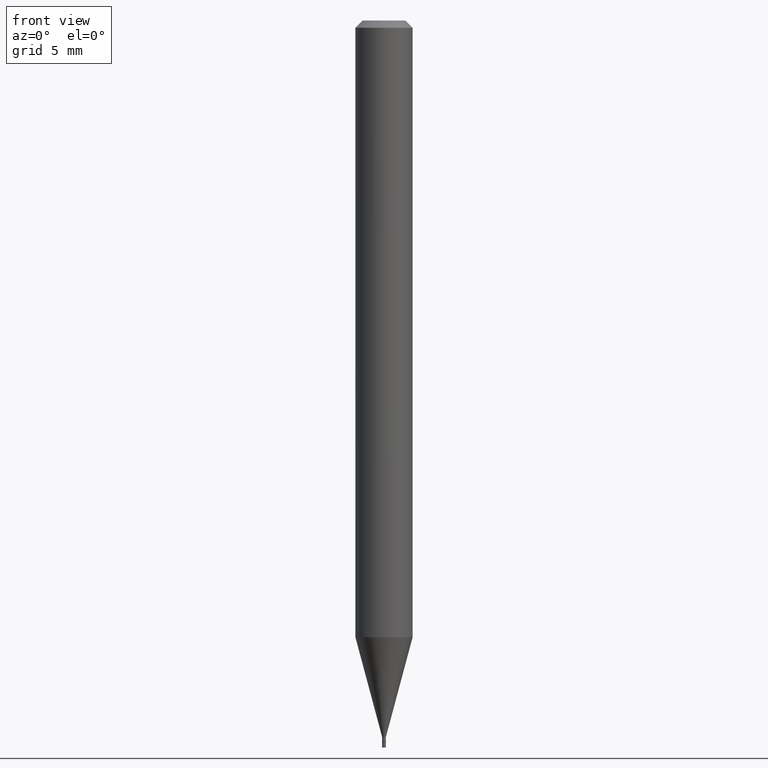
[diagram: clean part render]
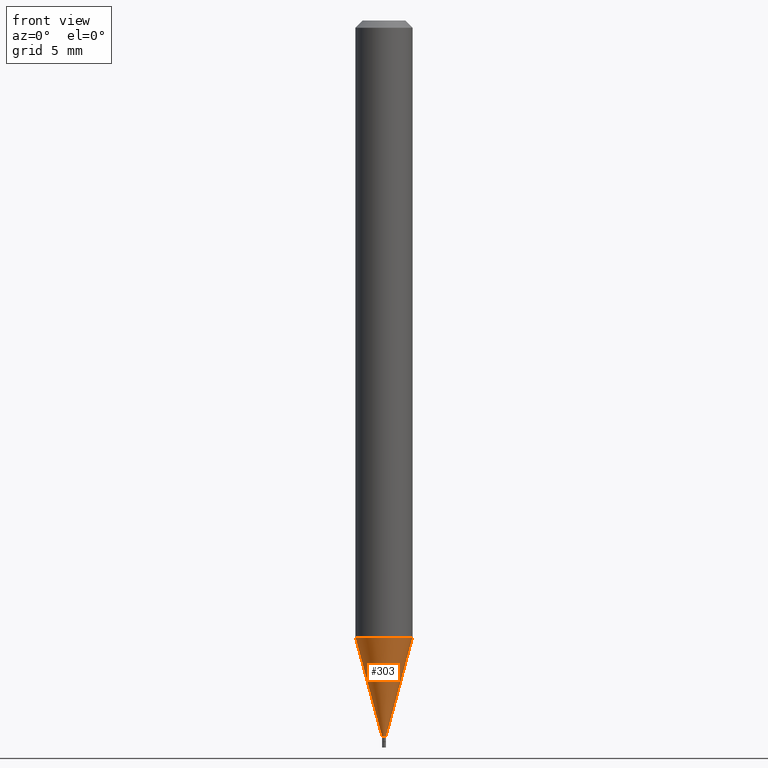
[diagram: same view with one face highlighted and labeled with its STEP entity id]
A machine part, front view. The second image highlights one B-rep face of the part: STEP entity #303.
In plain terms, the highlighted conical surface has half-angle 15 deg.
Its self-contained STEP definition (entity closure, byte-faithful):
#12 = ORIENTED_EDGE ( 'NONE', *, *, #421, .T. ) ;
#47 = CARTESIAN_POINT ( 'NONE',  ( 0.003949999999999924925, -5.187992121387030198E-15, -1.478000000000000203 ) ) ;
#54 = CARTESIAN_POINT ( 'NONE',  ( -0.05904999999999999832, -4.022859678505539415E-15, -1.272364000502955284 ) ) ;
#103 = CARTESIAN_POINT ( 'NONE',  ( -0.003949999999999924925, -5.132342980747646420E-15, -1.478000000000000203 ) ) ;
#119 = FACE_OUTER_BOUND ( 'NONE', #222, .T. ) ;
#133 = CONICAL_SURFACE ( 'NONE', #401, 0.003949999999999924925, 0.2617993877991500740 ) ;
#166 = VECTOR ( 'NONE', #269, 39.37007874015747433 ) ;
#191 = AXIS2_PLACEMENT_3D ( 'NONE', #231, #451, #392 ) ;
#202 = DIRECTION ( 'NONE',  ( -2.445468806185136597E-29, 3.491481338843145583E-15, 1.000000000000000000 ) ) ;
#221 = DIRECTION ( 'NONE',  ( 0.2588190451025213501, 1.565188264969621968E-15, 0.9659258262890682012 ) ) ;
#222 = EDGE_LOOP ( 'NONE', ( #412, #12, #234, #447 ) ) ;
#223 = CARTESIAN_POINT ( 'NONE',  ( 0.003949999999999924925, -5.187992121387030198E-15, -1.478000000000000203 ) ) ;
#231 = CARTESIAN_POINT ( 'NONE',  ( 3.614402895541632280E-29, -5.160409418810169653E-15, -1.478000000000000203 ) ) ;
#234 = ORIENTED_EDGE ( 'NONE', *, *, #250, .T. ) ;
#248 = DIRECTION ( 'NONE',  ( -2.445468806185136597E-29, 3.491481338843145583E-15, 1.000000000000000000 ) ) ;
#250 = EDGE_CURVE ( 'NONE', #376, #272, #268, .T. ) ;
#268 = LINE ( 'NONE', #223, #328 ) ;
#269 = DIRECTION ( 'NONE',  ( -0.2588190451025213501, 5.211531920934551042E-15, 0.9659258262890682012 ) ) ;
#271 = VERTEX_POINT ( 'NONE', #54 ) ;
#272 = VERTEX_POINT ( 'NONE', #444 ) ;
#279 = DIRECTION ( 'NONE',  ( 1.000000000000000000, -6.982962677686379518E-15, 0.000000000000000000 ) ) ;
#280 = CIRCLE ( 'NONE', #191, 0.003949999999999924925 ) ;
#303 = ADVANCED_FACE ( 'NONE', ( #119 ), #133, .T. ) ;
#313 = AXIS2_PLACEMENT_3D ( 'NONE', #383, #248, #389 ) ;
#328 = VECTOR ( 'NONE', #221, 39.37007874015747433 ) ;
#371 = EDGE_CURVE ( 'NONE', #406, #271, #423, .T. ) ;
#376 = VERTEX_POINT ( 'NONE', #47 ) ;
#383 = CARTESIAN_POINT ( 'NONE',  ( 3.111526473342906720E-29, -4.442435163971879697E-15, -1.272364000502955284 ) ) ;
#384 = EDGE_CURVE ( 'NONE', #271, #272, #463, .T. ) ;
#389 = DIRECTION ( 'NONE',  ( 1.000000000000000000, -6.982962677686273021E-15, 0.000000000000000000 ) ) ;
#392 = DIRECTION ( 'NONE',  ( 1.000000000000000000, -6.982962677686379518E-15, 0.000000000000000000 ) ) ;
#401 = AXIS2_PLACEMENT_3D ( 'NONE', #407, #202, #279 ) ;
#406 = VERTEX_POINT ( 'NONE', #419 ) ;
#407 = CARTESIAN_POINT ( 'NONE',  ( 3.614402895541632280E-29, -5.160409418810169653E-15, -1.478000000000000203 ) ) ;
#412 = ORIENTED_EDGE ( 'NONE', *, *, #371, .F. ) ;
#419 = CARTESIAN_POINT ( 'NONE',  ( -0.003949999999999924925, -4.577601329626593312E-15, -1.478000000000000203 ) ) ;
#421 = EDGE_CURVE ( 'NONE', #406, #376, #280, .T. ) ;
#423 = LINE ( 'NONE', #103, #166 ) ;
#444 = CARTESIAN_POINT ( 'NONE',  ( 0.05904999999999999832, -4.854779110089253829E-15, -1.272364000502955284 ) ) ;
#447 = ORIENTED_EDGE ( 'NONE', *, *, #384, .F. ) ;
#451 = DIRECTION ( 'NONE',  ( -2.445468806185136597E-29, 3.491481338843145583E-15, 1.000000000000000000 ) ) ;
#463 = CIRCLE ( 'NONE', #313, 0.05904999999999999832 ) ;